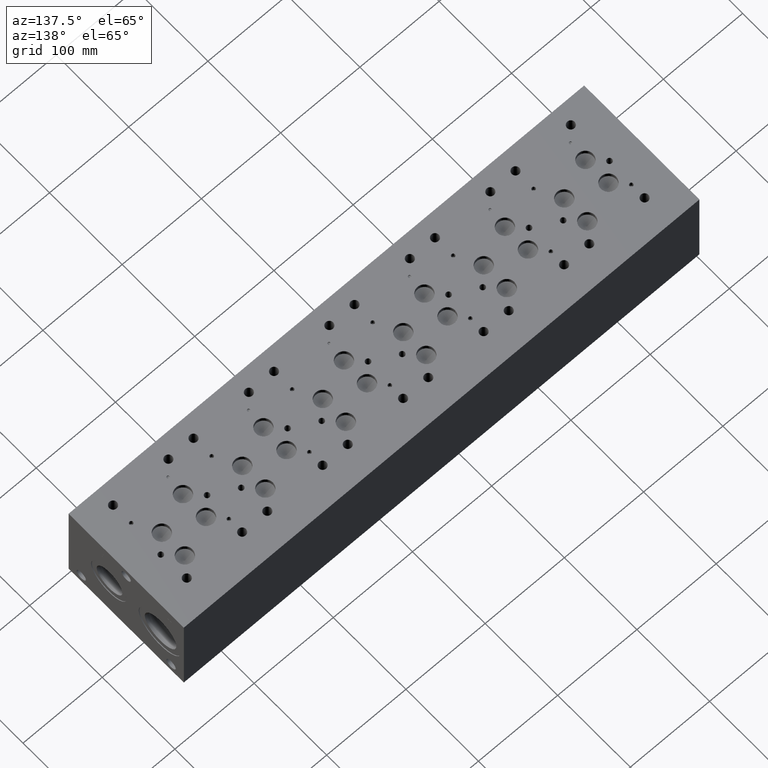
[diagram: clean part render]
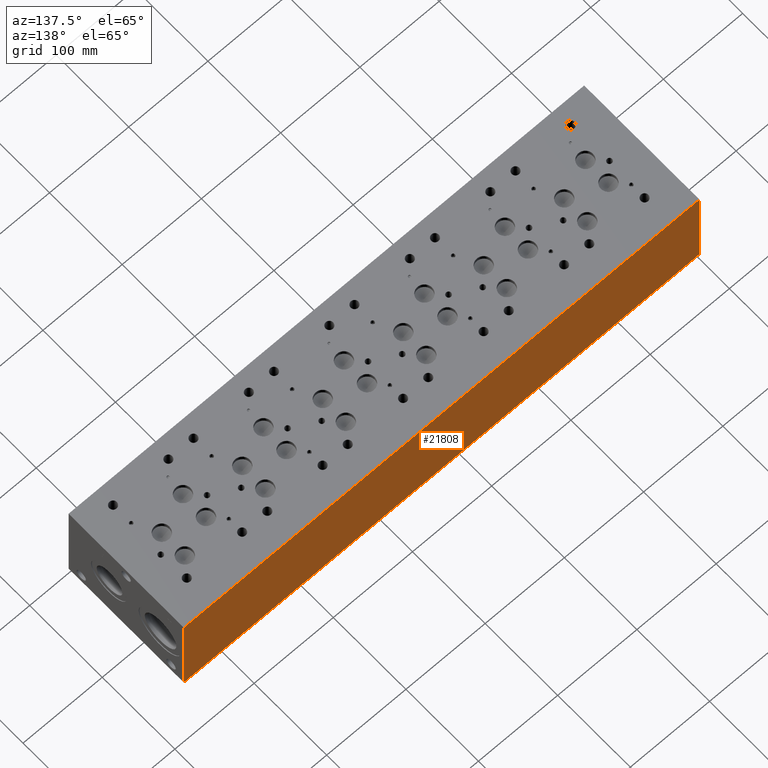
[diagram: same view with one face highlighted and labeled with its STEP entity id]
A machine part, auxiliary view. The second image highlights one B-rep face of the part: STEP entity #21808.
In plain terms, the highlighted planar face has unit normal (0, 1, 0).
Its self-contained STEP definition (entity closure, byte-faithful):
#3273=FACE_OUTER_BOUND('',#4604,.T.);
#4604=EDGE_LOOP('',(#19310,#19311,#19312,#19313));
#4744=LINE('',#29296,#6534);
#4806=LINE('',#29578,#6596);
#6475=LINE('',#37912,#8265);
#6476=LINE('',#37913,#8266);
#6534=VECTOR('',#23731,10.);
#6596=VECTOR('',#23851,10.);
#8265=VECTOR('',#29030,10.);
#8266=VECTOR('',#29031,10.);
#8316=VERTEX_POINT('',#29293);
#8317=VERTEX_POINT('',#29295);
#8377=VERTEX_POINT('',#29571);
#8380=VERTEX_POINT('',#29576);
#10468=EDGE_CURVE('',#8316,#8317,#4744,.T.);
#10556=EDGE_CURVE('',#8377,#8380,#4806,.T.);
#13424=EDGE_CURVE('',#8316,#8377,#6475,.T.);
#13425=EDGE_CURVE('',#8317,#8380,#6476,.T.);
#19310=ORIENTED_EDGE('',*,*,#13424,.T.);
#19311=ORIENTED_EDGE('',*,*,#10556,.T.);
#19312=ORIENTED_EDGE('',*,*,#13425,.F.);
#19313=ORIENTED_EDGE('',*,*,#10468,.F.);
#20026=PLANE('',#23629);
#21808=ADVANCED_FACE('',(#3273),#20026,.T.);
#23629=AXIS2_PLACEMENT_3D('',#37911,#29028,#29029);
#23731=DIRECTION('',(0.,0.,1.));
#23851=DIRECTION('',(0.,0.,1.));
#29028=DIRECTION('center_axis',(0.,1.,0.));
#29029=DIRECTION('ref_axis',(-1.,0.,0.));
#29030=DIRECTION('',(-1.,0.,0.));
#29031=DIRECTION('',(-1.,0.,0.));
#29293=CARTESIAN_POINT('',(650.8496,158.75,0.));
#29295=CARTESIAN_POINT('',(650.8496,158.75,120.65));
#29296=CARTESIAN_POINT('',(650.8496,158.75,0.));
#29571=CARTESIAN_POINT('',(0.,158.75,0.));
#29576=CARTESIAN_POINT('',(0.,158.75,120.65));
#29578=CARTESIAN_POINT('',(0.,158.75,0.));
#37911=CARTESIAN_POINT('Origin',(650.8496,158.75,0.));
#37912=CARTESIAN_POINT('',(650.8496,158.75,0.));
#37913=CARTESIAN_POINT('',(650.8496,158.75,120.65));